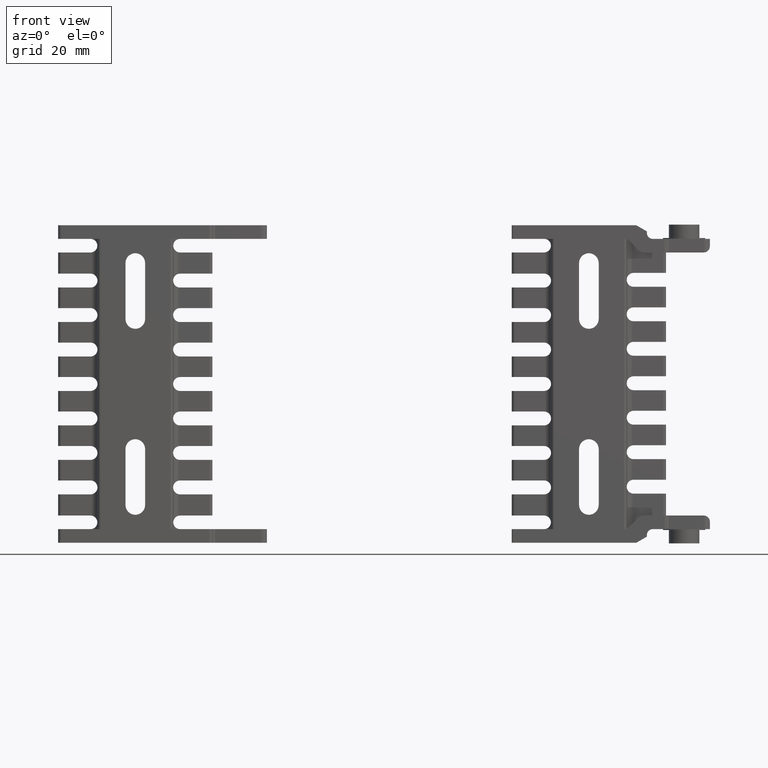
[diagram: clean part render]
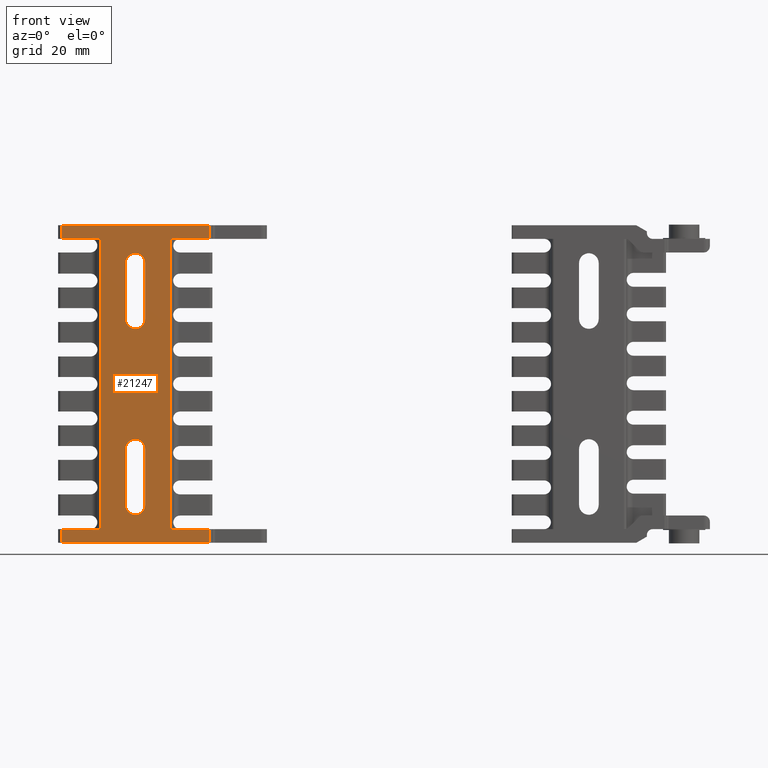
[diagram: same view with one face highlighted and labeled with its STEP entity id]
A machine part, front view. The second image highlights one B-rep face of the part: STEP entity #21247.
In plain terms, the highlighted planar face has unit normal (0, -1, 0).
Its self-contained STEP definition (entity closure, byte-faithful):
#121 = DIRECTION ( 'NONE',  ( 0.000000000000000000, 0.000000000000000000, 1.000000000000000000 ) ) ;
#288 = VERTEX_POINT ( 'NONE', #20213 ) ;
#409 = LINE ( 'NONE', #16510, #15762 ) ;
#574 = EDGE_CURVE ( 'NONE', #11329, #16798, #16716, .T. ) ;
#652 = EDGE_LOOP ( 'NONE', ( #14829, #2888, #1223, #14899 ) ) ;
#824 = VECTOR ( 'NONE', #8883, 1000.000000000000000 ) ;
#889 = DIRECTION ( 'NONE',  ( 0.000000000000000000, 1.000000000000000000, 0.000000000000000000 ) ) ;
#1005 = DIRECTION ( 'NONE',  ( -1.000000000000000000, 0.000000000000000000, 0.000000000000000000 ) ) ;
#1048 = DIRECTION ( 'NONE',  ( 0.000000000000000000, 0.000000000000000000, -1.000000000000000000 ) ) ;
#1198 = LINE ( 'NONE', #17316, #18193 ) ;
#1223 = ORIENTED_EDGE ( 'NONE', *, *, #10849, .T. ) ;
#1715 = LINE ( 'NONE', #1835, #21835 ) ;
#1750 = VECTOR ( 'NONE', #5671, 1000.000000000000000 ) ;
#1809 = LINE ( 'NONE', #17901, #9206 ) ;
#1835 = CARTESIAN_POINT ( 'NONE',  ( -169.9999999999999716, -18.50000000000000355, -48.00000000000000000 ) ) ;
#2050 = DIRECTION ( 'NONE',  ( 0.000000000000000000, 0.000000000000000000, 1.000000000000000000 ) ) ;
#2359 = FACE_BOUND ( 'NONE', #652, .T. ) ;
#2445 = VERTEX_POINT ( 'NONE', #9729 ) ;
#2477 = ORIENTED_EDGE ( 'NONE', *, *, #20696, .F. ) ;
#2483 = EDGE_CURVE ( 'NONE', #3897, #6951, #4602, .T. ) ;
#2507 = VECTOR ( 'NONE', #1048, 1000.000000000000000 ) ;
#2620 = CIRCLE ( 'NONE', #22039, 3.250000000000002665 ) ;
#2769 = LINE ( 'NONE', #12053, #13732 ) ;
#2824 = CARTESIAN_POINT ( 'NONE',  ( -206.0000000000000000, -18.50000000000000355, 48.00000000000000000 ) ) ;
#2888 = ORIENTED_EDGE ( 'NONE', *, *, #13440, .T. ) ;
#2909 = VERTEX_POINT ( 'NONE', #20183 ) ;
#2936 = EDGE_CURVE ( 'NONE', #17433, #21508, #1809, .T. ) ;
#3139 = AXIS2_PLACEMENT_3D ( 'NONE', #8275, #889, #1005 ) ;
#3297 = LINE ( 'NONE', #10670, #824 ) ;
#3897 = VERTEX_POINT ( 'NONE', #23596 ) ;
#4166 = DIRECTION ( 'NONE',  ( 1.000000000000000000, 0.000000000000000000, 0.000000000000000000 ) ) ;
#4285 = CARTESIAN_POINT ( 'NONE',  ( -184.7499999999999716, -18.50000000000000355, -40.00000000000000000 ) ) ;
#4351 = CARTESIAN_POINT ( 'NONE',  ( -206.0000000000000000, -18.50000000000000355, 52.50000000000000711 ) ) ;
#4602 = LINE ( 'NONE', #6160, #14123 ) ;
#4612 = EDGE_CURVE ( 'NONE', #10294, #10612, #9086, .T. ) ;
#4704 = EDGE_LOOP ( 'NONE', ( #6786, #6674, #16579, #19576 ) ) ;
#4873 = CARTESIAN_POINT ( 'NONE',  ( -192.9999999999999716, -18.50000000000000355, 48.00000000000000000 ) ) ;
#4969 = EDGE_CURVE ( 'NONE', #21190, #10146, #10748, .T. ) ;
#5271 = AXIS2_PLACEMENT_3D ( 'NONE', #7768, #18516, #7410 ) ;
#5313 = CARTESIAN_POINT ( 'NONE',  ( -169.9999999999999716, -18.50000000000000355, 48.00000000000000000 ) ) ;
#5671 = DIRECTION ( 'NONE',  ( 1.000000000000000000, 0.000000000000000000, 0.000000000000000000 ) ) ;
#5781 = CARTESIAN_POINT ( 'NONE',  ( -192.9999999999999716, -18.50000000000000355, -48.00000000000000000 ) ) ;
#6160 = CARTESIAN_POINT ( 'NONE',  ( -156.9999999999999716, -18.50000000000000355, -52.50000000000000000 ) ) ;
#6369 = DIRECTION ( 'NONE',  ( 0.000000000000000000, 0.000000000000000000, -1.000000000000000000 ) ) ;
#6468 = CARTESIAN_POINT ( 'NONE',  ( -169.9999999999999716, -18.50000000000000355, 48.00000000000000000 ) ) ;
#6543 = DIRECTION ( 'NONE',  ( -1.000000000000000000, 0.000000000000000000, 0.000000000000000000 ) ) ;
#6674 = ORIENTED_EDGE ( 'NONE', *, *, #21752, .T. ) ;
#6724 = CARTESIAN_POINT ( 'NONE',  ( -156.9999999999999716, -18.50000000000000355, 52.50000000000000711 ) ) ;
#6786 = ORIENTED_EDGE ( 'NONE', *, *, #11337, .T. ) ;
#6806 = VERTEX_POINT ( 'NONE', #9111 ) ;
#6951 = VERTEX_POINT ( 'NONE', #15284 ) ;
#6984 = VECTOR ( 'NONE', #6369, 1000.000000000000000 ) ;
#7243 = DIRECTION ( 'NONE',  ( 0.000000000000000000, -1.000000000000000000, 0.000000000000000000 ) ) ;
#7359 = AXIS2_PLACEMENT_3D ( 'NONE', #14991, #7243, #14502 ) ;
#7410 = DIRECTION ( 'NONE',  ( 1.000000000000000000, 0.000000000000000000, 0.000000000000000000 ) ) ;
#7731 = FACE_OUTER_BOUND ( 'NONE', #23051, .T. ) ;
#7768 = CARTESIAN_POINT ( 'NONE',  ( -181.5000000000000000, -18.50000000000000355, -40.00000000000000000 ) ) ;
#7778 = VECTOR ( 'NONE', #2050, 1000.000000000000000 ) ;
#8084 = CARTESIAN_POINT ( 'NONE',  ( -181.5000000000000000, -18.50000000000000355, 39.99999999999999289 ) ) ;
#8118 = VECTOR ( 'NONE', #121, 1000.000000000000000 ) ;
#8126 = ORIENTED_EDGE ( 'NONE', *, *, #2483, .T. ) ;
#8138 = LINE ( 'NONE', #22692, #6984 ) ;
#8275 = CARTESIAN_POINT ( 'NONE',  ( -181.5000000000000000, -18.50000000000000355, -21.50000000000000000 ) ) ;
#8277 = CARTESIAN_POINT ( 'NONE',  ( -184.7499999999999716, -18.50000000000000355, -21.50000000000000000 ) ) ;
#8377 = VERTEX_POINT ( 'NONE', #6468 ) ;
#8560 = ORIENTED_EDGE ( 'NONE', *, *, #14060, .T. ) ;
#8883 = DIRECTION ( 'NONE',  ( -1.000000000000000000, 0.000000000000000000, 0.000000000000000000 ) ) ;
#9086 = LINE ( 'NONE', #16346, #19945 ) ;
#9111 = CARTESIAN_POINT ( 'NONE',  ( -169.9999999999999716, -18.50000000000000355, -48.00000000000000000 ) ) ;
#9206 = VECTOR ( 'NONE', #19821, 1000.000000000000000 ) ;
#9221 = EDGE_CURVE ( 'NONE', #10612, #11557, #1198, .T. ) ;
#9403 = CARTESIAN_POINT ( 'NONE',  ( -206.0000000000000000, -18.50000000000000355, -52.50000000000000000 ) ) ;
#9729 = CARTESIAN_POINT ( 'NONE',  ( -184.7499999999999716, -18.50000000000000355, 39.99999999999999289 ) ) ;
#10096 = DIRECTION ( 'NONE',  ( 1.000000000000000000, 0.000000000000000000, 0.000000000000000000 ) ) ;
#10112 = LINE ( 'NONE', #13320, #2507 ) ;
#10146 = VERTEX_POINT ( 'NONE', #15313 ) ;
#10294 = VERTEX_POINT ( 'NONE', #12091 ) ;
#10310 = DIRECTION ( 'NONE',  ( 0.000000000000000000, 0.000000000000000000, 1.000000000000000000 ) ) ;
#10379 = ORIENTED_EDGE ( 'NONE', *, *, #15517, .T. ) ;
#10413 = ORIENTED_EDGE ( 'NONE', *, *, #21451, .T. ) ;
#10612 = VERTEX_POINT ( 'NONE', #6724 ) ;
#10670 = CARTESIAN_POINT ( 'NONE',  ( -156.9999999999999716, -18.50000000000000355, -48.00000000000000000 ) ) ;
#10748 = CIRCLE ( 'NONE', #22995, 3.250000000000002665 ) ;
#10849 = EDGE_CURVE ( 'NONE', #13580, #11329, #20888, .T. ) ;
#10915 = VECTOR ( 'NONE', #19176, 1000.000000000000000 ) ;
#10976 = CARTESIAN_POINT ( 'NONE',  ( -206.0000000000000000, -18.50000000000000355, 48.00000000000000000 ) ) ;
#10989 = CARTESIAN_POINT ( 'NONE',  ( -206.0000000000000000, -18.50000000000000355, -52.50000000000000000 ) ) ;
#11064 = LINE ( 'NONE', #9403, #10915 ) ;
#11264 = DIRECTION ( 'NONE',  ( 0.000000000000000000, 0.000000000000000000, 1.000000000000000000 ) ) ;
#11329 = VERTEX_POINT ( 'NONE', #4285 ) ;
#11337 = EDGE_CURVE ( 'NONE', #2445, #288, #2620, .T. ) ;
#11557 = VERTEX_POINT ( 'NONE', #4351 ) ;
#11843 = VERTEX_POINT ( 'NONE', #17978 ) ;
#12053 = CARTESIAN_POINT ( 'NONE',  ( -206.0000000000000000, -18.50000000000000355, -52.50000000000000000 ) ) ;
#12091 = CARTESIAN_POINT ( 'NONE',  ( -156.9999999999999716, -18.50000000000000355, 48.00000000000000000 ) ) ;
#13320 = CARTESIAN_POINT ( 'NONE',  ( -178.2499999999999716, -18.50000000000000355, -21.50000000000000000 ) ) ;
#13440 = EDGE_CURVE ( 'NONE', #2909, #13580, #10112, .T. ) ;
#13580 = VERTEX_POINT ( 'NONE', #14484 ) ;
#13652 = DIRECTION ( 'NONE',  ( 0.000000000000000000, 0.000000000000000000, 1.000000000000000000 ) ) ;
#13732 = VECTOR ( 'NONE', #23026, 1000.000000000000000 ) ;
#14034 = ORIENTED_EDGE ( 'NONE', *, *, #4612, .T. ) ;
#14060 = EDGE_CURVE ( 'NONE', #8377, #10294, #14458, .T. ) ;
#14118 = EDGE_CURVE ( 'NONE', #21508, #14651, #18426, .T. ) ;
#14123 = VECTOR ( 'NONE', #13652, 1000.000000000000000 ) ;
#14458 = LINE ( 'NONE', #5313, #1750 ) ;
#14484 = CARTESIAN_POINT ( 'NONE',  ( -178.2499999999999716, -18.50000000000000355, -40.00000000000000000 ) ) ;
#14502 = DIRECTION ( 'NONE',  ( 0.000000000000000000, 0.000000000000000000, -1.000000000000000000 ) ) ;
#14651 = VERTEX_POINT ( 'NONE', #20129 ) ;
#14743 = FACE_BOUND ( 'NONE', #4704, .T. ) ;
#14829 = ORIENTED_EDGE ( 'NONE', *, *, #20333, .T. ) ;
#14899 = ORIENTED_EDGE ( 'NONE', *, *, #574, .T. ) ;
#14989 = DIRECTION ( 'NONE',  ( 0.000000000000000000, 1.000000000000000000, 0.000000000000000000 ) ) ;
#14991 = CARTESIAN_POINT ( 'NONE',  ( -156.9999999999999716, -18.50000000000000355, 0.000000000000000000 ) ) ;
#15173 = CARTESIAN_POINT ( 'NONE',  ( -192.9999999999999716, -18.50000000000000355, -48.00000000000000000 ) ) ;
#15284 = CARTESIAN_POINT ( 'NONE',  ( -156.9999999999999716, -18.50000000000000355, -48.00000000000000000 ) ) ;
#15299 = VECTOR ( 'NONE', #10096, 1000.000000000000000 ) ;
#15313 = CARTESIAN_POINT ( 'NONE',  ( -184.7499999999999716, -18.50000000000000355, 21.50000000000000000 ) ) ;
#15517 = EDGE_CURVE ( 'NONE', #15942, #3897, #11064, .T. ) ;
#15762 = VECTOR ( 'NONE', #11264, 1000.000000000000000 ) ;
#15942 = VERTEX_POINT ( 'NONE', #10989 ) ;
#16255 = DIRECTION ( 'NONE',  ( 0.000000000000000000, 0.000000000000000000, 1.000000000000000000 ) ) ;
#16346 = CARTESIAN_POINT ( 'NONE',  ( -156.9999999999999716, -18.50000000000000355, 48.00000000000000000 ) ) ;
#16510 = CARTESIAN_POINT ( 'NONE',  ( -184.7499999999999716, -18.50000000000000355, 21.50000000000000000 ) ) ;
#16579 = ORIENTED_EDGE ( 'NONE', *, *, #4969, .T. ) ;
#16716 = LINE ( 'NONE', #18032, #7778 ) ;
#16798 = VERTEX_POINT ( 'NONE', #8277 ) ;
#16809 = LINE ( 'NONE', #10976, #8118 ) ;
#16840 = CIRCLE ( 'NONE', #3139, 3.250000000000002665 ) ;
#17219 = EDGE_CURVE ( 'NONE', #15942, #14651, #2769, .T. ) ;
#17316 = CARTESIAN_POINT ( 'NONE',  ( -156.9999999999999716, -18.50000000000000355, 52.50000000000000711 ) ) ;
#17433 = VERTEX_POINT ( 'NONE', #4873 ) ;
#17729 = VECTOR ( 'NONE', #21881, 1000.000000000000000 ) ;
#17901 = CARTESIAN_POINT ( 'NONE',  ( -193.0000000000015348, -18.50000000000000355, 48.00000000000000000 ) ) ;
#17978 = CARTESIAN_POINT ( 'NONE',  ( -206.0000000000000000, -18.50000000000000355, 48.00000000000000000 ) ) ;
#18032 = CARTESIAN_POINT ( 'NONE',  ( -184.7499999999999716, -18.50000000000000355, -40.00000000000000000 ) ) ;
#18193 = VECTOR ( 'NONE', #21141, 1000.000000000000000 ) ;
#18426 = LINE ( 'NONE', #5781, #17729 ) ;
#18516 = DIRECTION ( 'NONE',  ( 0.000000000000000000, 1.000000000000000000, 0.000000000000000000 ) ) ;
#19176 = DIRECTION ( 'NONE',  ( 1.000000000000000000, 0.000000000000000000, 0.000000000000000000 ) ) ;
#19483 = ORIENTED_EDGE ( 'NONE', *, *, #17219, .F. ) ;
#19573 = ORIENTED_EDGE ( 'NONE', *, *, #2936, .T. ) ;
#19576 = ORIENTED_EDGE ( 'NONE', *, *, #22251, .T. ) ;
#19821 = DIRECTION ( 'NONE',  ( 0.000000000000000000, 0.000000000000000000, -1.000000000000000000 ) ) ;
#19891 = EDGE_CURVE ( 'NONE', #11843, #17433, #23195, .T. ) ;
#19945 = VECTOR ( 'NONE', #10310, 1000.000000000000000 ) ;
#19985 = EDGE_CURVE ( 'NONE', #6951, #6806, #3297, .T. ) ;
#20129 = CARTESIAN_POINT ( 'NONE',  ( -206.0000000000000000, -18.50000000000000355, -48.00000000000000000 ) ) ;
#20183 = CARTESIAN_POINT ( 'NONE',  ( -178.2499999999999716, -18.50000000000000355, -21.50000000000000000 ) ) ;
#20213 = CARTESIAN_POINT ( 'NONE',  ( -178.2499999999999716, -18.50000000000000355, 39.99999999999999289 ) ) ;
#20333 = EDGE_CURVE ( 'NONE', #16798, #2909, #16840, .T. ) ;
#20502 = CARTESIAN_POINT ( 'NONE',  ( -178.2499999999999716, -18.50000000000000355, 21.50000000000000000 ) ) ;
#20696 = EDGE_CURVE ( 'NONE', #11843, #11557, #16809, .T. ) ;
#20888 = CIRCLE ( 'NONE', #5271, 3.250000000000002665 ) ;
#21141 = DIRECTION ( 'NONE',  ( -1.000000000000000000, 0.000000000000000000, 0.000000000000000000 ) ) ;
#21190 = VERTEX_POINT ( 'NONE', #20502 ) ;
#21247 = ADVANCED_FACE ( 'NONE', ( #2359, #14743, #7731 ), #22052, .T. ) ;
#21451 = EDGE_CURVE ( 'NONE', #6806, #8377, #1715, .T. ) ;
#21508 = VERTEX_POINT ( 'NONE', #15173 ) ;
#21752 = EDGE_CURVE ( 'NONE', #288, #21190, #8138, .T. ) ;
#21835 = VECTOR ( 'NONE', #16255, 1000.000000000000000 ) ;
#21881 = DIRECTION ( 'NONE',  ( -1.000000000000000000, 0.000000000000000000, 0.000000000000000000 ) ) ;
#21918 = ORIENTED_EDGE ( 'NONE', *, *, #9221, .T. ) ;
#22039 = AXIS2_PLACEMENT_3D ( 'NONE', #8084, #22642, #6543 ) ;
#22052 = PLANE ( 'NONE',  #7359 ) ;
#22241 = ORIENTED_EDGE ( 'NONE', *, *, #19891, .T. ) ;
#22251 = EDGE_CURVE ( 'NONE', #10146, #2445, #409, .T. ) ;
#22374 = ORIENTED_EDGE ( 'NONE', *, *, #14118, .T. ) ;
#22630 = CARTESIAN_POINT ( 'NONE',  ( -181.5000000000000000, -18.50000000000000355, 21.50000000000000000 ) ) ;
#22642 = DIRECTION ( 'NONE',  ( 0.000000000000000000, 1.000000000000000000, 0.000000000000000000 ) ) ;
#22692 = CARTESIAN_POINT ( 'NONE',  ( -178.2499999999999716, -18.50000000000000355, 39.99999999999999289 ) ) ;
#22794 = ORIENTED_EDGE ( 'NONE', *, *, #19985, .T. ) ;
#22995 = AXIS2_PLACEMENT_3D ( 'NONE', #22630, #14989, #4166 ) ;
#23026 = DIRECTION ( 'NONE',  ( 0.000000000000000000, 0.000000000000000000, 1.000000000000000000 ) ) ;
#23051 = EDGE_LOOP ( 'NONE', ( #22794, #10413, #8560, #14034, #21918, #2477, #22241, #19573, #22374, #19483, #10379, #8126 ) ) ;
#23195 = LINE ( 'NONE', #2824, #15299 ) ;
#23596 = CARTESIAN_POINT ( 'NONE',  ( -156.9999999999999716, -18.50000000000000355, -52.50000000000000000 ) ) ;